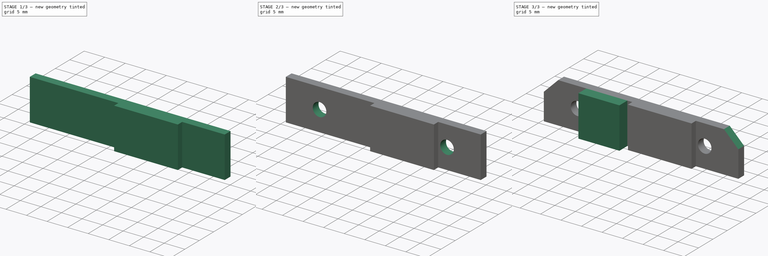
[diagram: build sequence overview — one tinted view per stage of 3, left to right]
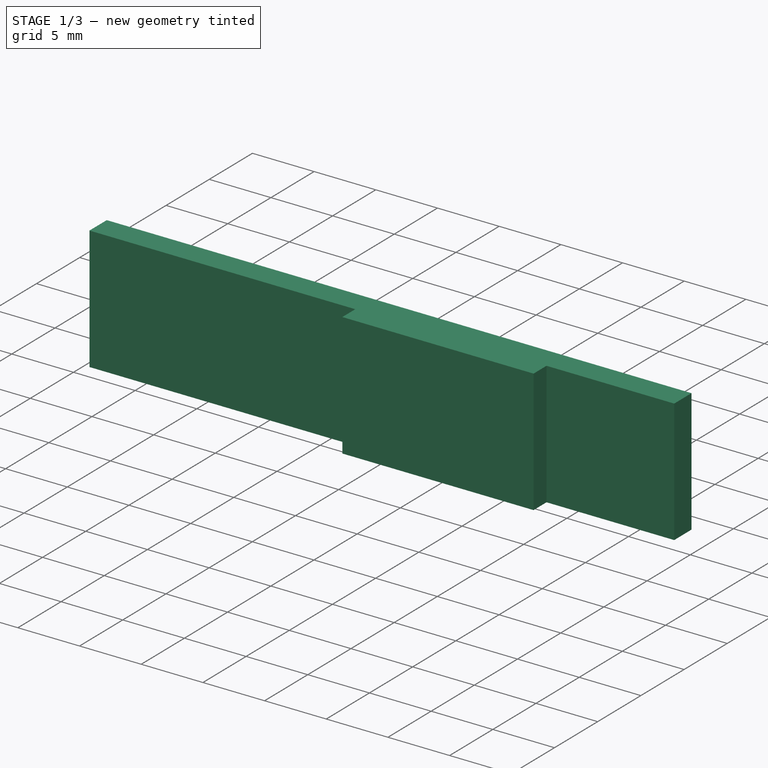
[diagram: stage 1 of 3 — iso view after this stage's code; geometry added in this stage tinted green]
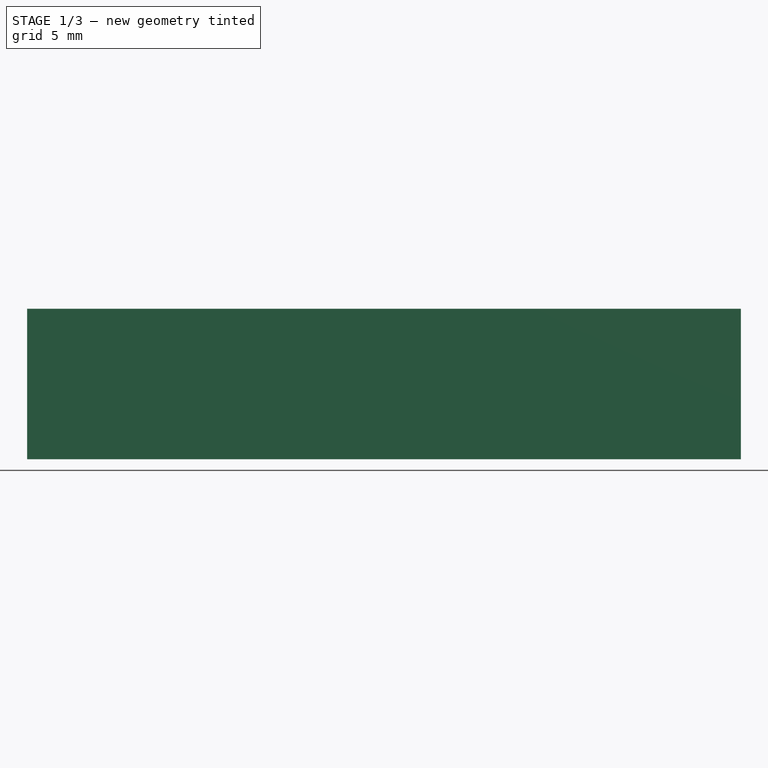
[diagram: stage 1 of 3 — front view after this stage's code; geometry added in this stage tinted green]
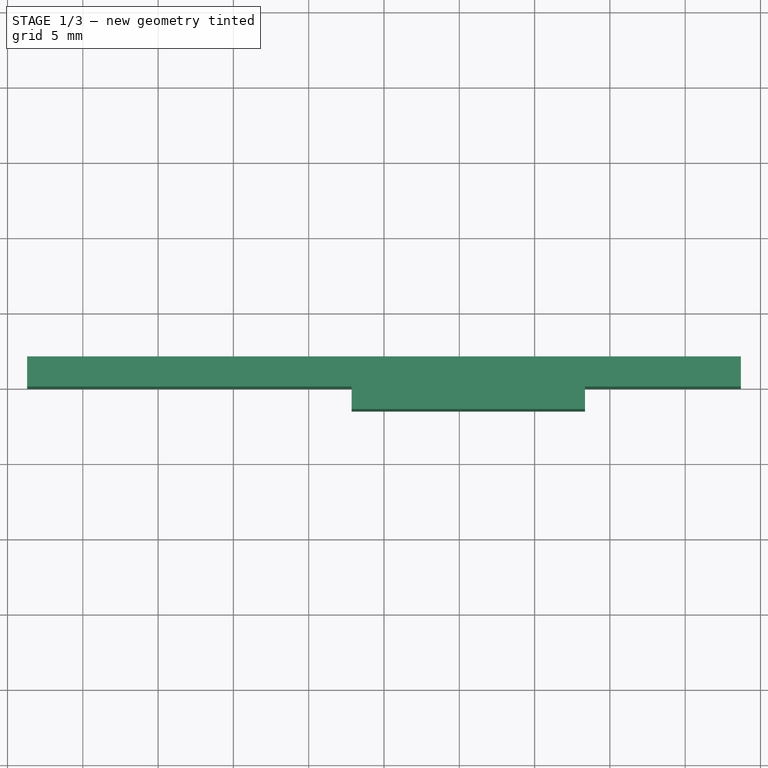
[diagram: stage 1 of 3 — top view after this stage's code; geometry added in this stage tinted green]
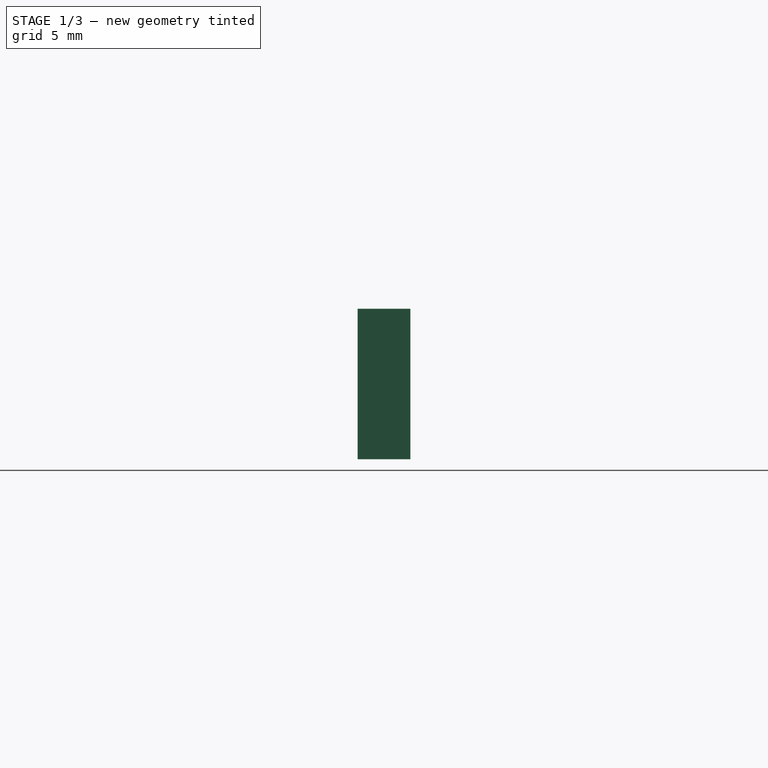
[diagram: stage 1 of 3 — right view after this stage's code; geometry added in this stage tinted green]
FCSTD DOCUMENT  (FreeCAD 0.18R16131 (Git))
Label: XT60+XT30Clip2
License: All rights reserved
LicenseURL: http://en.wikipedia.org/wiki/All_rights_reserved
objects: Sketcher::SketchObject×5, PartDesign::Pad×3, PartDesign::Pocket×2, PartDesign::Body×1, App::Part×1
note: 16 computed .brp shape members not serialized (recipe doc carries the construction recipe); baked Part::Feature solids carry a one-line shape summary decoded from their .brp

FEATURE [Sketcher::SketchObject] Sketch
  MapMode = 5
  Support = -> [XY_Plane001]
  sketch-geometry (4):
    g0: LineSegment StartX=-23.7 StartY=0 StartZ=0 EndX=23.7 EndY=0 EndZ=0
    g1: LineSegment StartX=23.7 StartY=0 StartZ=0 EndX=23.7 EndY=2 EndZ=0
    g2: LineSegment StartX=23.7 StartY=2 StartZ=0 EndX=-23.7 EndY=2 EndZ=0
    g3: LineSegment StartX=-23.7 StartY=2 StartZ=0 EndX=-23.7 EndY=0 EndZ=0
  constraints (11):
    c: Coincident(g0,g1)
    c: Coincident(g1,g2)
    c: Coincident(g2,g3)
    c: Coincident(g3,g0)
    c: Horizontal(g0)
    c: Vertical(g1)
    c: Distance(g2) = 47.4
    c: Symmetric(g2,g1,g-2)
    c: DistanceY(g-1,g2) = 2
    c: Vertical(g3)
    c: PointOnObject(g0,g-1)
FEATURE [PartDesign::Pad] Pad
  Length = 10
  Length2 = 100
  Profile = -> Sketch
  Reversed = true
  Type = 0
FEATURE [Sketcher::SketchObject] Sketch002
  MapMode = 5
  Placement = pos=(0,0,0) rot=(1,0,0;1.5708rad)
  Support = -> [XZ_Plane001]
  sketch-geometry (8):
    g0: LineSegment [constr] StartX=-13.35 StartY=0 StartZ=0 EndX=-3.35 EndY=0 EndZ=0
    g1: LineSegment [constr] StartX=-3.35 StartY=0 StartZ=0 EndX=-3.35 EndY=-10 EndZ=0
    g2: LineSegment [constr] StartX=-3.35 StartY=-10 StartZ=0 EndX=-13.35 EndY=-10 EndZ=0
    g3: LineSegment [constr] StartX=-13.35 StartY=-10 StartZ=0 EndX=-13.35 EndY=0 EndZ=0
    g4: LineSegment StartX=-2.15 StartY=0 StartZ=0 EndX=13.35 EndY=0 EndZ=0
    g5: LineSegment StartX=13.35 StartY=0 StartZ=0 EndX=13.35 EndY=-10 EndZ=0
    g6: LineSegment StartX=13.35 StartY=-10 StartZ=0 EndX=-2.15 EndY=-10 EndZ=0
    g7: LineSegment StartX=-2.15 StartY=-10 StartZ=0 EndX=-2.15 EndY=0 EndZ=0
  constraints (23):
    c: Coincident(g0,g1)
    c: Coincident(g1,g2)
    c: Coincident(g2,g3)
    c: Coincident(g3,g0)
    c: Horizontal(g0)
    c: Horizontal(g2)
    c: Vertical(g1)
    c: Vertical(g3)
    c: PointOnObject(g0,g-1)
    c: Coincident(g4,g5)
    c: Coincident(g5,g6)
    c: Coincident(g6,g7)
    c: Coincident(g7,g4)
    c: Horizontal(g4)
    c: Horizontal(g6)
    c: Vertical(g5)
    c: Vertical(g7)
    c: Equal(g3,g5)
    c: Distance(g3) = 10
    c: Distance(g0,g4) = 1.2
    c: Symmetric(g0,g4,g-2)
    c: Distance(g4) = 15.5
    c: Distance(g0) = 10
FEATURE [Sketcher::SketchObject] Sketch003
  MapMode = 5
  Placement = pos=(0,0,0) rot=(1,0,0;1.5708rad)
  Support = -> [XZ_Plane001]
  sketch-geometry (2):
    g0: Circle CenterX=-15.5 CenterY=-5 CenterZ=0 NormalX=0 NormalY=0 NormalZ=1 AngleXU=0 Radius=1.65
    g1: Circle CenterX=15.5 CenterY=-5 CenterZ=0 NormalX=0 NormalY=0 NormalZ=1 AngleXU=0 Radius=1.65
  constraints (5):
    c: Symmetric(g0,g1,g-2)
    c: DistanceY(g-1,g1) = -5
    c: Radius(g0) = 1.65
    c: Equal(g0,g1)
    c: Distance(g0,g1) = 31
FEATURE [Sketcher::SketchObject] Sketch004
  MapMode = 5
  Placement = pos=(0,0,0) rot=(1,0,0;1.5708rad)
  Support = -> [XZ_Plane001]
  sketch-geometry (6):
    g0: LineSegment StartX=-20.2 StartY=0 StartZ=0 EndX=-23.7 EndY=-3.5 EndZ=0
    g1: LineSegment StartX=-23.7 StartY=-3.5 StartZ=0 EndX=-23.7 EndY=0 EndZ=0
    g2: LineSegment StartX=-23.7 StartY=0 StartZ=0 EndX=-20.2 EndY=0 EndZ=0
    g3: LineSegment StartX=20.2 StartY=0 StartZ=0 EndX=23.7 EndY=0 EndZ=0
    g4: LineSegment StartX=20.2 StartY=0 StartZ=0 EndX=23.7 EndY=-3.5 EndZ=0
    g5: LineSegment StartX=23.7 StartY=0 StartZ=0 EndX=23.7 EndY=-3.5 EndZ=0
  constraints (17):
    c: PointOnObject(g0,g-1)
    c: Coincident(g1,g0)
    c: PointOnObject(g1,g-1)
    c: Vertical(g1)
    c: Coincident(g2,g1)
    c: Coincident(g2,g0)
    c: PointOnObject(g3,g-1)
    c: Coincident(g4,g3)
    c: Coincident(g5,g3)
    c: Coincident(g5,g4)
    c: Vertical(g5)
    c: Symmetric(g3,g0,g-2)
    c: Equal(g2,g3)
    c: Equal(g1,g5)
    c: Equal(g2,g1)
    c: Distance(g0,g3) = 40.4
    c: Distance(g2) = 3.5
FEATURE [PartDesign::Pad] Pad001
  BaseFeature = -> Pad
  Length = 1.5
  Length2 = 100
  Profile = -> Sketch002
  Type = 0
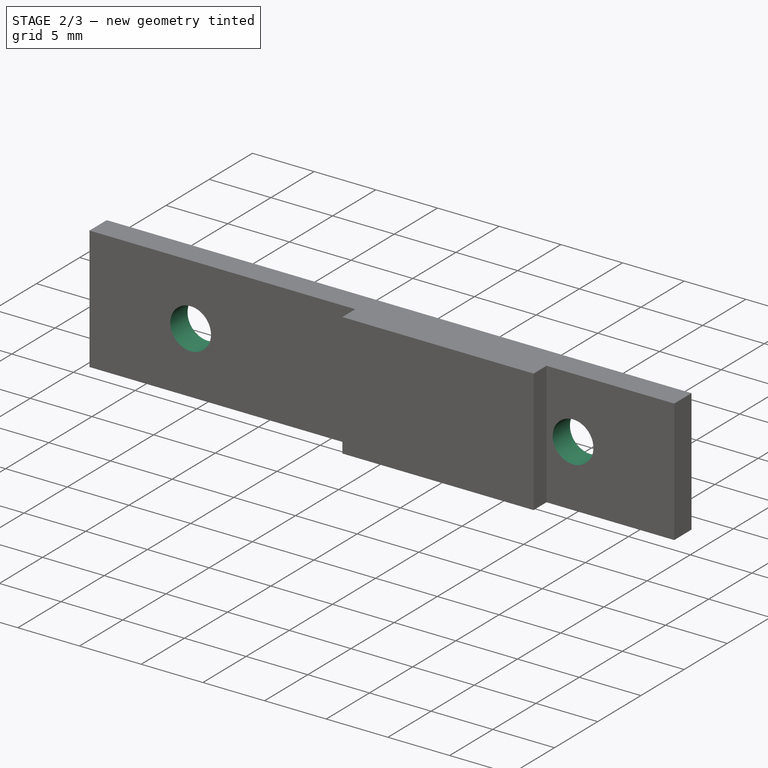
[diagram: stage 2 of 3 — iso view after this stage's code; geometry added in this stage tinted green]
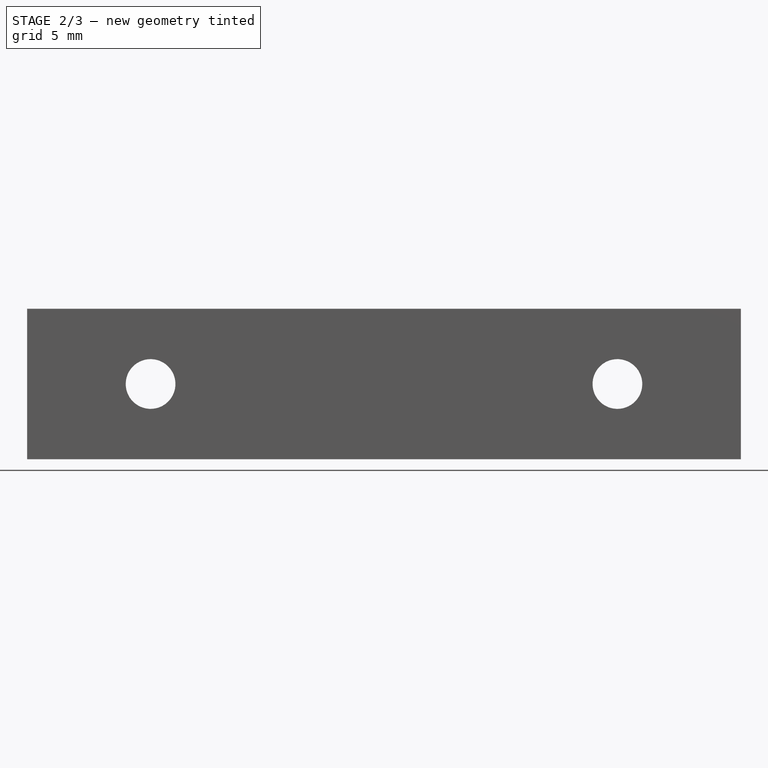
[diagram: stage 2 of 3 — front view after this stage's code; geometry added in this stage tinted green]
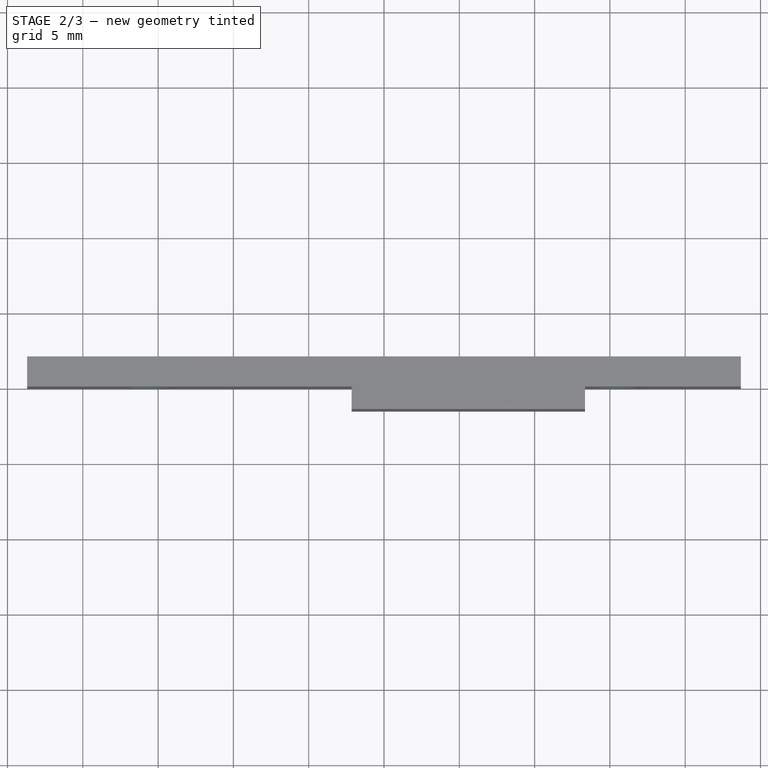
[diagram: stage 2 of 3 — top view after this stage's code; geometry added in this stage tinted green]
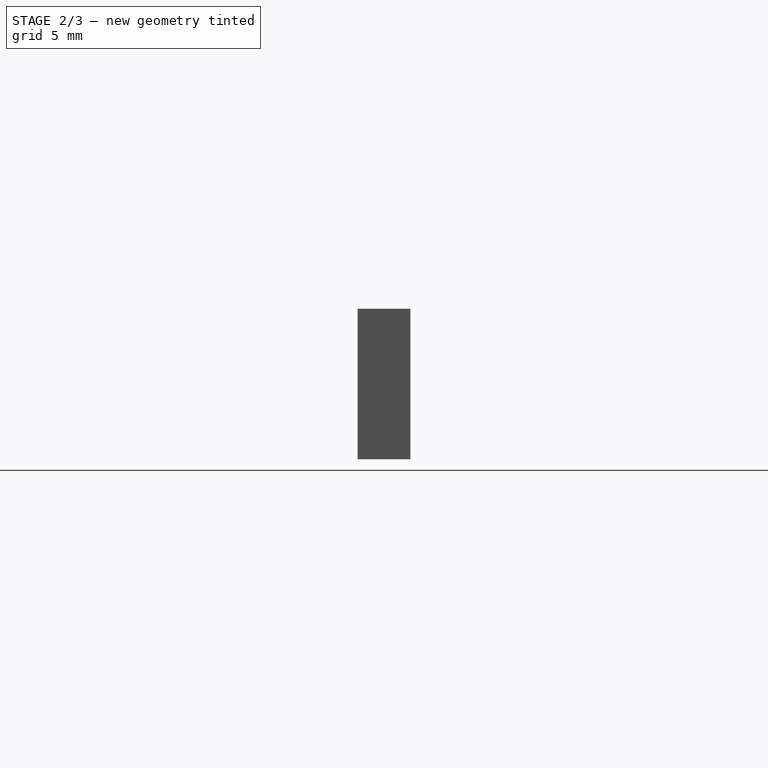
[diagram: stage 2 of 3 — right view after this stage's code; geometry added in this stage tinted green]
FEATURE [PartDesign::Pocket] Pocket
  BaseFeature = -> Pad001
  Length = 5
  Length2 = 100
  Midplane = true
  Profile = -> Sketch003
  Type = 1
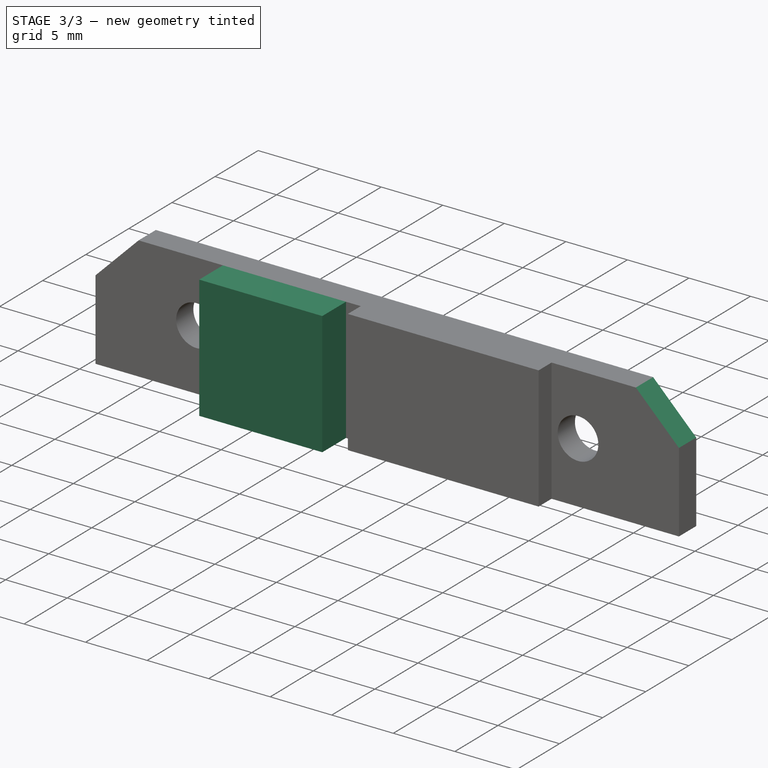
[diagram: stage 3 of 3 — iso view after this stage's code; geometry added in this stage tinted green]
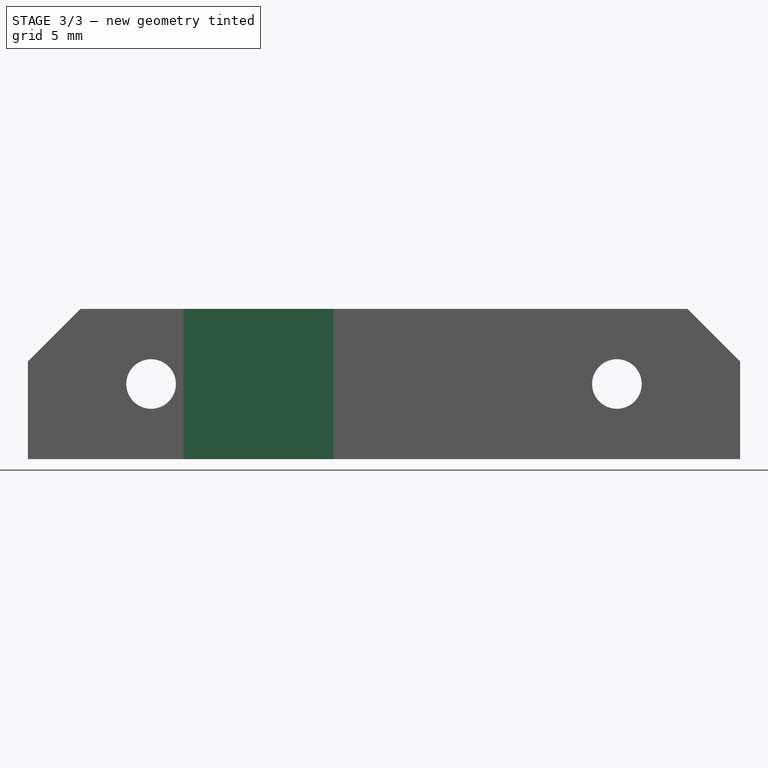
[diagram: stage 3 of 3 — front view after this stage's code; geometry added in this stage tinted green]
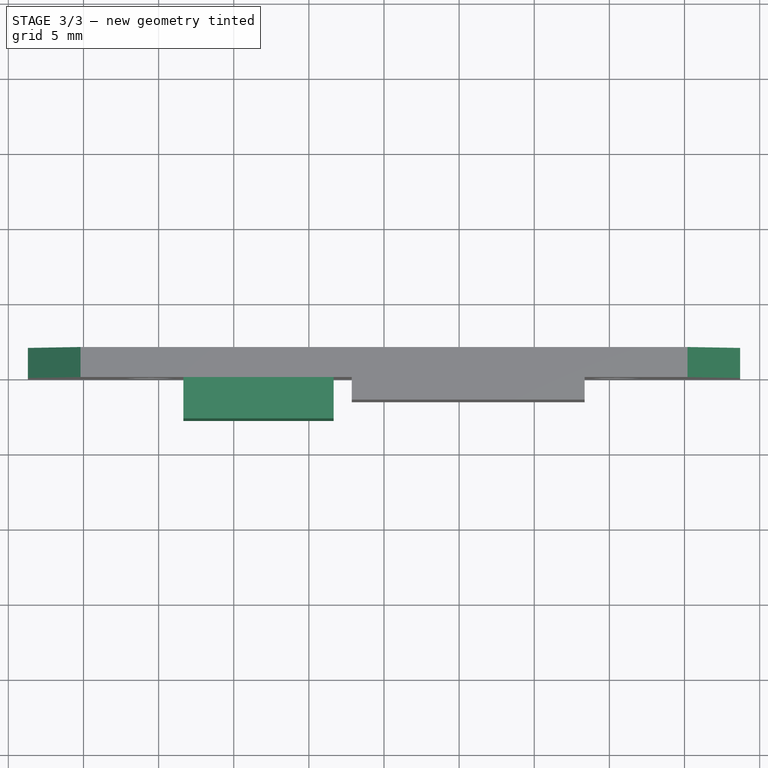
[diagram: stage 3 of 3 — top view after this stage's code; geometry added in this stage tinted green]
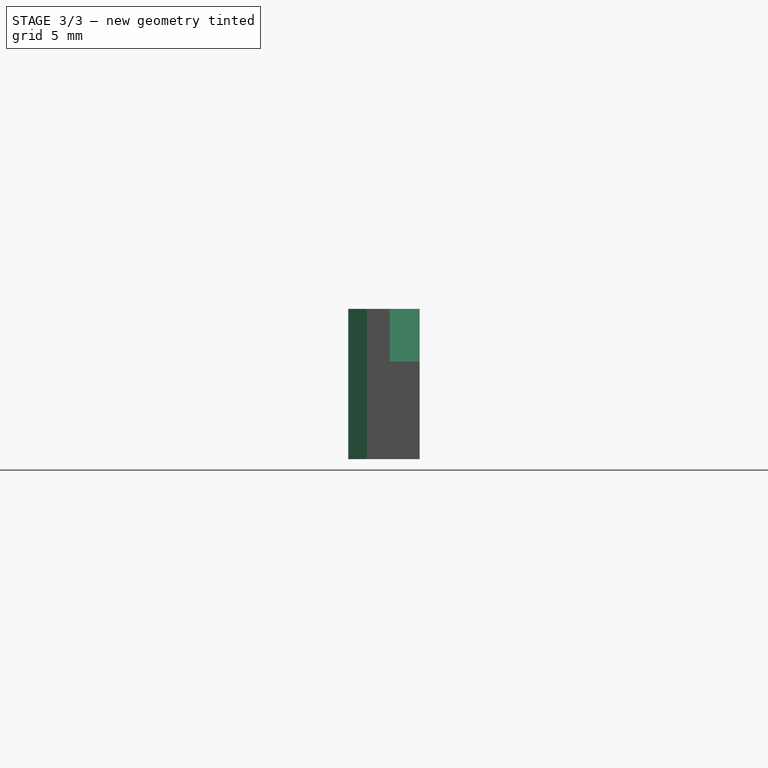
[diagram: stage 3 of 3 — right view after this stage's code; geometry added in this stage tinted green]
FEATURE [PartDesign::Pocket] Pocket001
  BaseFeature = -> Pocket
  Length = 5
  Length2 = 100
  Midplane = true
  Profile = -> Sketch004
  Type = 1
FEATURE [Sketcher::SketchObject] Sketch005
  MapMode = 5
  Placement = pos=(0,0,0) rot=(1,0,0;1.5708rad)
  Support = -> [XZ_Plane001]
  sketch-geometry (8):
    g0: LineSegment StartX=-13.35 StartY=0 StartZ=0 EndX=-3.35 EndY=0 EndZ=0
    g1: LineSegment StartX=-3.35 StartY=0 StartZ=0 EndX=-3.35 EndY=-10 EndZ=0
    g2: LineSegment StartX=-3.35 StartY=-10 StartZ=0 EndX=-13.35 EndY=-10 EndZ=0
    g3: LineSegment StartX=-13.35 StartY=-10 StartZ=0 EndX=-13.35 EndY=0 EndZ=0
    g4: LineSegment [constr] StartX=-2.15 StartY=0 StartZ=0 EndX=13.35 EndY=0 EndZ=0
    g5: LineSegment [constr] StartX=13.35 StartY=0 StartZ=0 EndX=13.35 EndY=-10 EndZ=0
    g6: LineSegment [constr] StartX=13.35 StartY=-10 StartZ=0 EndX=-2.15 EndY=-10 EndZ=0
    g7: LineSegment [constr] StartX=-2.15 StartY=-10 StartZ=0 EndX=-2.15 EndY=0 EndZ=0
  constraints (23):
    c: Coincident(g0,g1)
    c: Coincident(g1,g2)
    c: Coincident(g2,g3)
    c: Coincident(g3,g0)
    c: Horizontal(g0)
    c: Horizontal(g2)
    c: Vertical(g1)
    c: Vertical(g3)
    c: PointOnObject(g0,g-1)
    c: Coincident(g4,g5)
    c: Coincident(g5,g6)
    c: Coincident(g6,g7)
    c: Coincident(g7,g4)
    c: Horizontal(g4)
    c: Horizontal(g6)
    c: Vertical(g5)
    c: Vertical(g7)
    c: Equal(g3,g5)
    c: Distance(g3) = 10
    c: Distance(g0,g4) = 1.2
    c: Symmetric(g0,g4,g-2)
    c: Distance(g4) = 15.5
    c: Distance(g0) = 10
FEATURE [PartDesign::Pad] Pad002
  BaseFeature = -> Pocket001
  Length = 2.75
  Length2 = 100
  Profile = -> Sketch005
  Type = 0
FEATURE [PartDesign::Body] Body
  Group = -> [Sketch,Pad,Sketch002,Sketch003,Sketch004,Pad001,Pocket,Pocket001,Sketch005,Pad002]
  Origin = -> Origin001
  Tip = -> Pad002
FEATURE [App::Part] Part
  Group = -> [Body]
  Origin = -> Origin
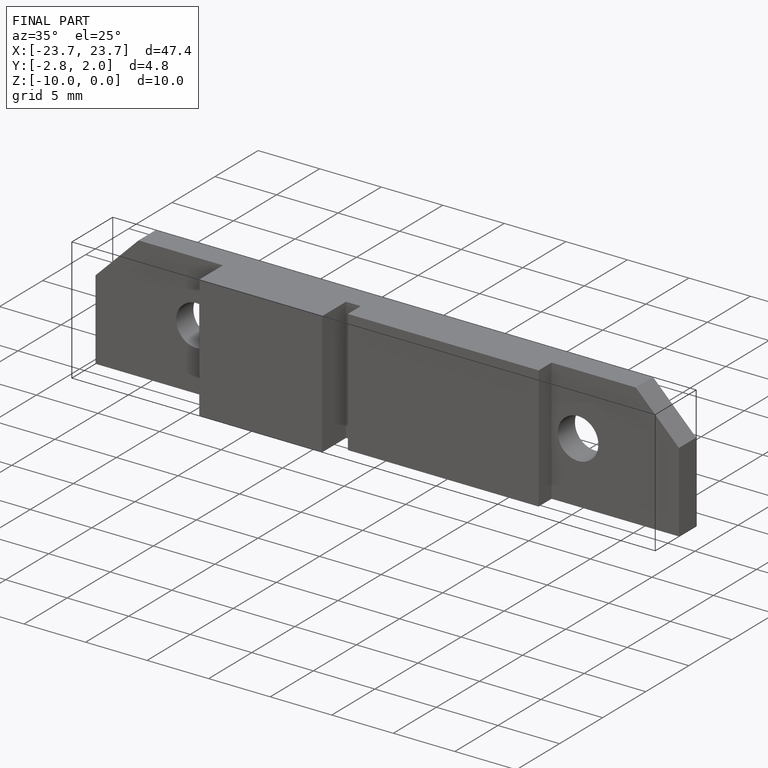
[diagram: finished part — iso view with bounding-box wireframe]
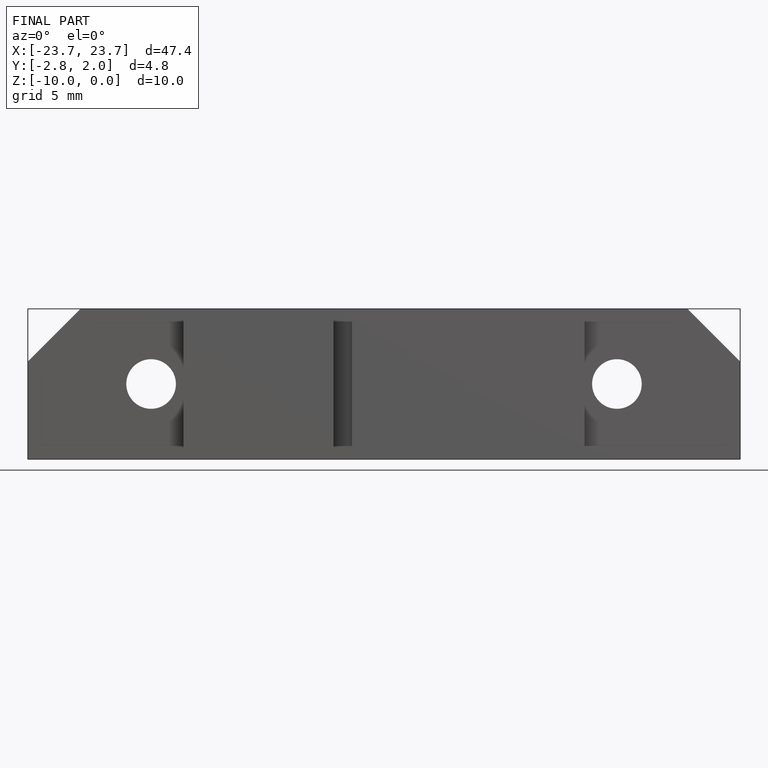
[diagram: finished part — front view with bounding-box wireframe]
